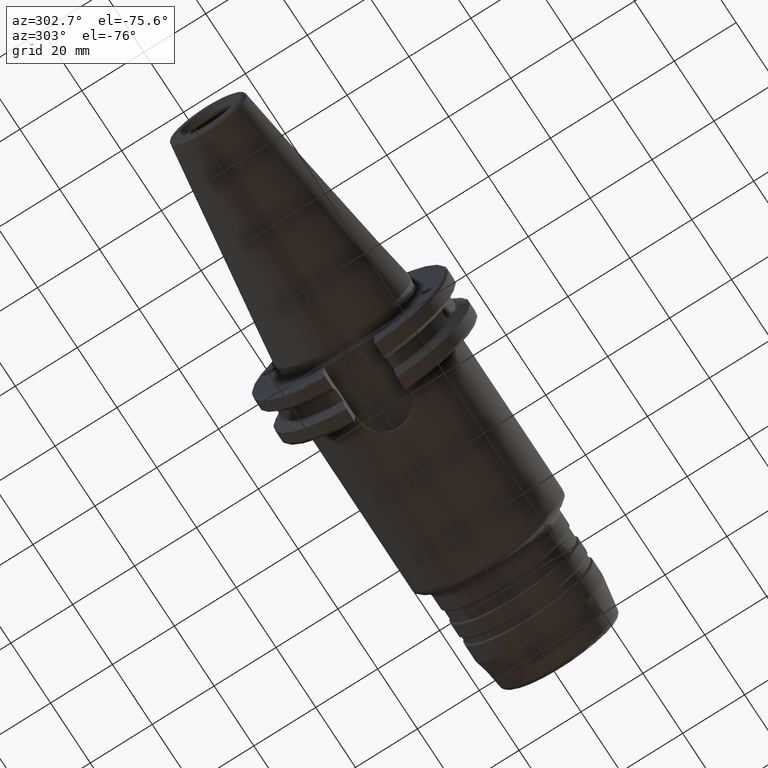
[diagram: clean part render]
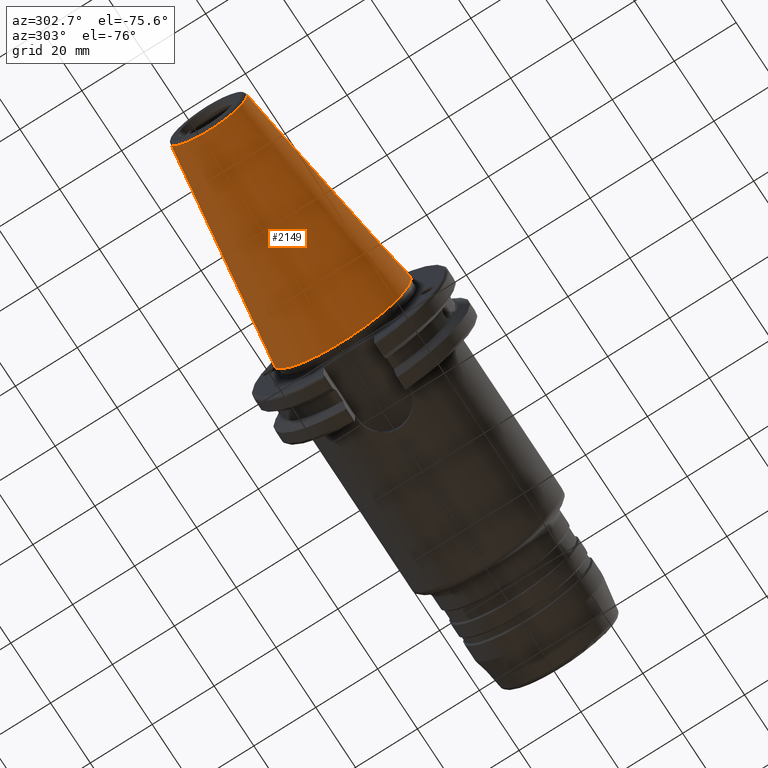
[diagram: same view with one face highlighted and labeled with its STEP entity id]
A machine part, auxiliary view. The second image highlights one B-rep face of the part: STEP entity #2149.
In plain terms, the highlighted conical surface has half-angle 8.297 deg.
Its self-contained STEP definition (entity closure, byte-faithful):
#114=CONICAL_SURFACE('',#2455,17.2484375,0.144812498238939);
#250=FACE_OUTER_BOUND('',#369,.T.);
#369=EDGE_LOOP('',(#1900,#1901,#1902,#1903,#1904,#1905,#1906));
#478=LINE('',#4169,#572);
#572=VECTOR('',#3110,17.2484375);
#738=CIRCLE('',#2446,12.3966635780937);
#739=CIRCLE('',#2447,12.3966635780937);
#743=CIRCLE('',#2451,12.3966635780937);
#746=CIRCLE('',#2456,22.225);
#747=CIRCLE('',#2457,22.225);
#986=VERTEX_POINT('',#4148);
#987=VERTEX_POINT('',#4149);
#988=VERTEX_POINT('',#4151);
#993=VERTEX_POINT('',#4165);
#994=VERTEX_POINT('',#4166);
#1308=EDGE_CURVE('',#986,#987,#738,.T.);
#1309=EDGE_CURVE('',#987,#988,#739,.T.);
#1313=EDGE_CURVE('',#988,#986,#743,.T.);
#1316=EDGE_CURVE('',#993,#994,#746,.T.);
#1317=EDGE_CURVE('',#994,#993,#747,.T.);
#1318=EDGE_CURVE('',#994,#987,#478,.T.);
#1900=ORIENTED_EDGE('',*,*,#1316,.F.);
#1901=ORIENTED_EDGE('',*,*,#1317,.F.);
#1902=ORIENTED_EDGE('',*,*,#1318,.T.);
#1903=ORIENTED_EDGE('',*,*,#1308,.F.);
#1904=ORIENTED_EDGE('',*,*,#1313,.F.);
#1905=ORIENTED_EDGE('',*,*,#1309,.F.);
#1906=ORIENTED_EDGE('',*,*,#1318,.F.);
#2149=ADVANCED_FACE('',(#250),#114,.T.);
#2446=AXIS2_PLACEMENT_3D('',#4150,#3086,#3087);
#2447=AXIS2_PLACEMENT_3D('',#4152,#3088,#3089);
#2451=AXIS2_PLACEMENT_3D('',#4158,#3096,#3097);
#2455=AXIS2_PLACEMENT_3D('',#4164,#3104,#3105);
#2456=AXIS2_PLACEMENT_3D('',#4167,#3106,#3107);
#2457=AXIS2_PLACEMENT_3D('',#4168,#3108,#3109);
#3086=DIRECTION('center_axis',(-1.,0.,0.));
#3087=DIRECTION('ref_axis',(0.,-1.,3.06161699786838E-17));
#3088=DIRECTION('center_axis',(-1.,0.,0.));
#3089=DIRECTION('ref_axis',(0.,-1.,3.06161699786838E-17));
#3096=DIRECTION('center_axis',(-1.,0.,0.));
#3097=DIRECTION('ref_axis',(0.,-1.,3.06161699786838E-17));
#3104=DIRECTION('center_axis',(1.,0.,0.));
#3105=DIRECTION('ref_axis',(0.,1.,0.));
#3106=DIRECTION('center_axis',(1.,0.,0.));
#3107=DIRECTION('ref_axis',(0.,0.,-1.));
#3108=DIRECTION('center_axis',(1.,0.,0.));
#3109=DIRECTION('ref_axis',(0.,0.,-1.));
#3110=DIRECTION('',(-0.989532981063282,0.144306893071729,1.76724974695192E-17));
#4148=CARTESIAN_POINT('',(-67.3943068930717,12.3966635780937,-3.79538359275475E-15));
#4149=CARTESIAN_POINT('',(-67.3943068930718,-12.3966635780937,-1.5181534371019E-15));
#4150=CARTESIAN_POINT('Origin',(-67.3943068930717,0.,-1.89769179637738E-15));
#4151=CARTESIAN_POINT('',(-67.3943068930717,-1.5181534371019E-15,12.3966635780937));
#4152=CARTESIAN_POINT('Origin',(-67.3943068930717,0.,-1.89769179637738E-15));
#4158=CARTESIAN_POINT('Origin',(-67.3943068930717,0.,-1.89769179637738E-15));
#4164=CARTESIAN_POINT('Origin',(-34.125,0.,0.));
#4165=CARTESIAN_POINT('',(0.,22.225,0.));
#4166=CARTESIAN_POINT('',(0.,-22.225,-2.72177751110499E-15));
#4167=CARTESIAN_POINT('Origin',(0.,0.,0.));
#4168=CARTESIAN_POINT('Origin',(0.,0.,0.));
#4169=CARTESIAN_POINT('',(-34.125,-17.2484375,-2.11232437746682E-15));